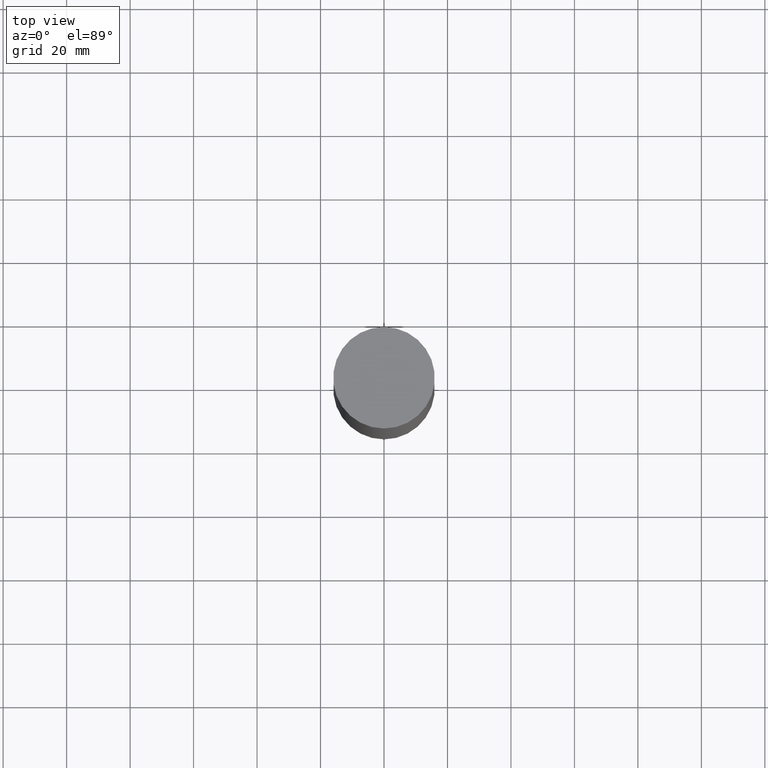
[diagram: clean part render]
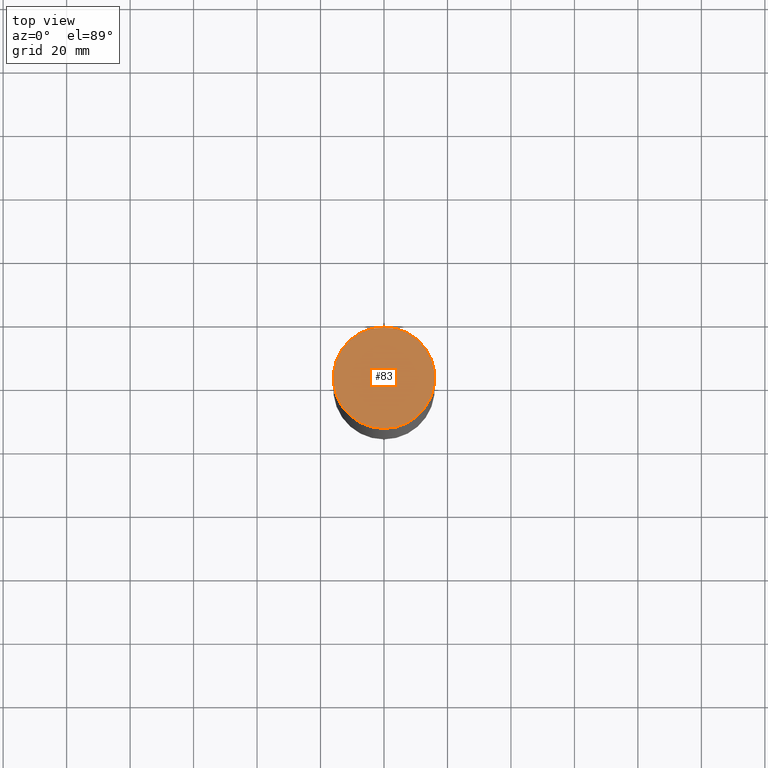
[diagram: same view with one face highlighted and labeled with its STEP entity id]
A machine part, top view. The second image highlights one B-rep face of the part: STEP entity #83.
In plain terms, the highlighted planar face has unit normal (-0, -0, 1).
Its self-contained STEP definition (entity closure, byte-faithful):
#83=ADVANCED_FACE('',(#108),#109,.T.);
#108=FACE_OUTER_BOUND('',#133,.T.);
#109=PLANE('',#134);
#133=EDGE_LOOP('',(#174));
#134=AXIS2_PLACEMENT_3D('',#175,#176,#177);
#174=ORIENTED_EDGE('',*,*,#185,.T.);
#175=CARTESIAN_POINT('',(-1.38385088303651E-014,7.99999999999997,226.0));
#176=DIRECTION('',(-6.12323399573677E-017,-1.22464679914735E-016,1.0));
#177=DIRECTION('',(-1.23259516440783E-032,1.0,1.22464679914735E-016));
#185=EDGE_CURVE('',#200,#200,#201,.T.);
#200=VERTEX_POINT('',#216);
#201=CIRCLE('',#217,16.0);
#216=CARTESIAN_POINT('',(-1.38385088303651E-014,16.0,226.0));
#217=AXIS2_PLACEMENT_3D('',#239,#240,#241);
#239=CARTESIAN_POINT('',(-1.38385088303651E-014,-2.76770176607302E-014,226.0));
#240=DIRECTION('',(-6.12323399573677E-017,-1.22464679914735E-016,1.0));
#241=DIRECTION('',(-1.23259516440783E-032,1.0,1.22464679914735E-016));